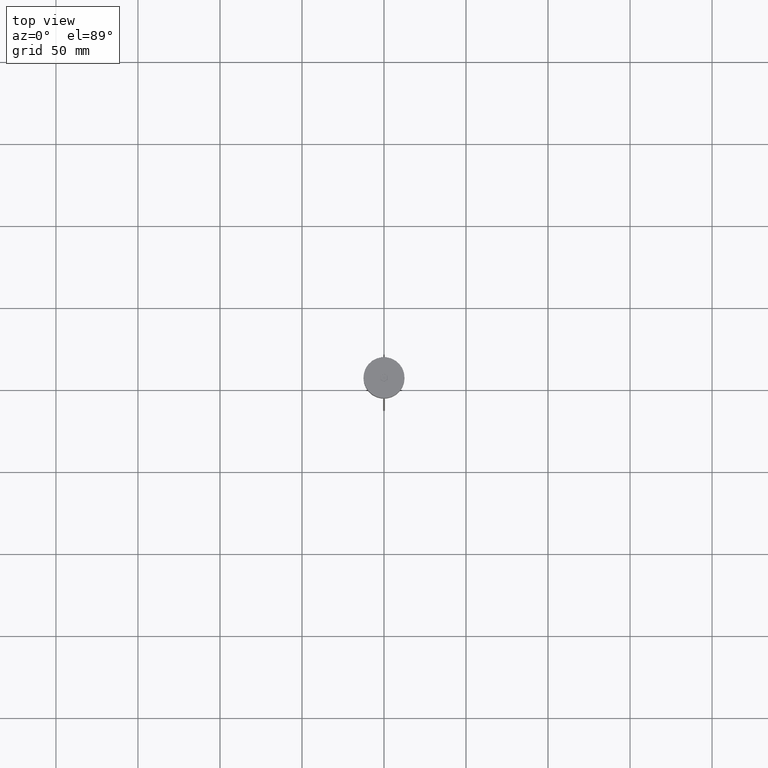
[diagram: clean part render]
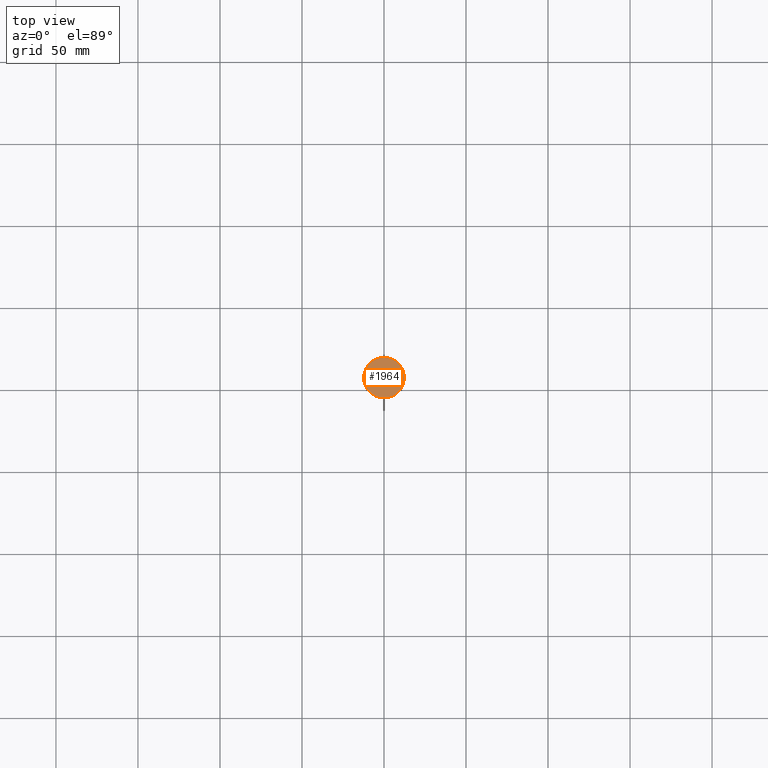
[diagram: same view with one face highlighted and labeled with its STEP entity id]
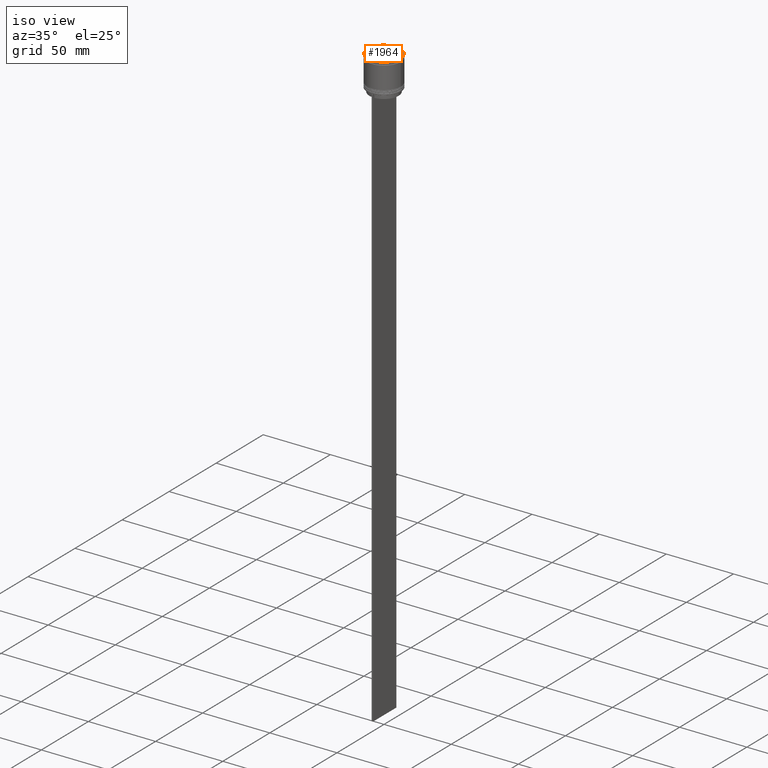
[diagram: same view with one face highlighted and labeled with its STEP entity id]
A machine part, top view. The second image highlights one B-rep face of the part: STEP entity #1964.
A second angle (iso view) of the same face is appended — the face is thin or edge-on in the first view.
In plain terms, the highlighted planar face has unit normal (0, -0, 1).
Its self-contained STEP definition (entity closure, byte-faithful):
#18 = CARTESIAN_POINT ( 'NONE',  ( 0.000000000000000000, 0.000000000000000000, 0.000000000000000000 ) ) ;
#75 = LINE ( 'NONE', #1352, #875 ) ;
#93 = CARTESIAN_POINT ( 'NONE',  ( 2.100000000000007194, -1.212435565298218165, 0.000000000000000000 ) ) ;
#131 = CARTESIAN_POINT ( 'NONE',  ( -0.05000000000000367345, 2.396003617136952535, 0.000000000000000000 ) ) ;
#132 = CARTESIAN_POINT ( 'NONE',  ( 0.05000000000000407591, -2.396003617136953423, 0.000000000000000000 ) ) ;
#173 = CARTESIAN_POINT ( 'NONE',  ( 0.000000000000000000, 0.000000000000000000, 0.000000000000000000 ) ) ;
#179 = LINE ( 'NONE', #823, #433 ) ;
#238 = CARTESIAN_POINT ( 'NONE',  ( -2.100000000000007194, 1.212435565298217943, 0.000000000000000000 ) ) ;
#246 = ORIENTED_EDGE ( 'NONE', *, *, #1995, .T. ) ;
#269 = ORIENTED_EDGE ( 'NONE', *, *, #1872, .T. ) ;
#291 = PLANE ( 'NONE',  #1857 ) ;
#312 = FACE_BOUND ( 'NONE', #1481, .T. ) ;
#362 = EDGE_CURVE ( 'NONE', #794, #1875, #179, .T. ) ;
#423 = EDGE_LOOP ( 'NONE', ( #269, #791 ) ) ;
#431 = ORIENTED_EDGE ( 'NONE', *, *, #362, .T. ) ;
#433 = VECTOR ( 'NONE', #623, 1000.000000000000000 ) ;
#460 = ORIENTED_EDGE ( 'NONE', *, *, #793, .T. ) ;
#470 = CARTESIAN_POINT ( 'NONE',  ( -2.100000000000007194, 1.154700538379251018, 0.000000000000000000 ) ) ;
#492 = DIRECTION ( 'NONE',  ( 0.000000000000000000, -0.000000000000000000, 1.000000000000000000 ) ) ;
#499 = EDGE_CURVE ( 'NONE', #631, #794, #75, .T. ) ;
#552 = VECTOR ( 'NONE', #821, 999.9999999999998863 ) ;
#591 = DIRECTION ( 'NONE',  ( 1.000000000000000000, 0.000000000000000000, 0.000000000000000000 ) ) ;
#622 = VERTEX_POINT ( 'NONE', #914 ) ;
#623 = DIRECTION ( 'NONE',  ( 0.000000000000000000, -1.000000000000000000, 0.000000000000000000 ) ) ;
#631 = VERTEX_POINT ( 'NONE', #1230 ) ;
#668 = ORIENTED_EDGE ( 'NONE', *, *, #499, .T. ) ;
#773 = EDGE_CURVE ( 'NONE', #622, #928, #1889, .T. ) ;
#791 = ORIENTED_EDGE ( 'NONE', *, *, #1348, .T. ) ;
#793 = EDGE_CURVE ( 'NONE', #928, #631, #1578, .T. ) ;
#794 = VERTEX_POINT ( 'NONE', #2082 ) ;
#802 = VERTEX_POINT ( 'NONE', #1497 ) ;
#821 = DIRECTION ( 'NONE',  ( -0.8660254037844385966, -0.5000000000000002220, 0.000000000000000000 ) ) ;
#823 = CARTESIAN_POINT ( 'NONE',  ( 2.100000000000007194, -1.154700538379251684, 0.000000000000000000 ) ) ;
#868 = CARTESIAN_POINT ( 'NONE',  ( 12.39999999999999858, 0.000000000000000000, 0.000000000000000000 ) ) ;
#875 = VECTOR ( 'NONE', #1789, 1000.000000000000000 ) ;
#895 = DIRECTION ( 'NONE',  ( -0.000000000000000000, -0.000000000000000000, 1.000000000000000000 ) ) ;
#914 = CARTESIAN_POINT ( 'NONE',  ( -2.100000000000007194, -1.212435565298218831, 0.000000000000000000 ) ) ;
#928 = VERTEX_POINT ( 'NONE', #238 ) ;
#965 = VERTEX_POINT ( 'NONE', #868 ) ;
#997 = LINE ( 'NONE', #1803, #1278 ) ;
#1156 = VERTEX_POINT ( 'NONE', #1412 ) ;
#1206 = ORIENTED_EDGE ( 'NONE', *, *, #773, .T. ) ;
#1230 = CARTESIAN_POINT ( 'NONE',  ( 7.253222183746967031E-17, 2.424871130596435886, 0.000000000000000000 ) ) ;
#1252 = EDGE_CURVE ( 'NONE', #1156, #622, #997, .T. ) ;
#1278 = VECTOR ( 'NONE', #1811, 1000.000000000000114 ) ;
#1348 = EDGE_CURVE ( 'NONE', #802, #965, #1851, .T. ) ;
#1352 = CARTESIAN_POINT ( 'NONE',  ( 2.050000000000003819, 1.241303078757701295, 0.000000000000000000 ) ) ;
#1412 = CARTESIAN_POINT ( 'NONE',  ( 6.025829263321777976E-16, -2.424871130596436775, 0.000000000000000000 ) ) ;
#1413 = AXIS2_PLACEMENT_3D ( 'NONE', #173, #1952, #1473 ) ;
#1425 = LINE ( 'NONE', #132, #552 ) ;
#1433 = DIRECTION ( 'NONE',  ( 0.8660254037844387076, 0.4999999999999998890, 0.000000000000000000 ) ) ;
#1473 = DIRECTION ( 'NONE',  ( 1.000000000000000000, 0.000000000000000000, 0.000000000000000000 ) ) ;
#1481 = EDGE_LOOP ( 'NONE', ( #246, #1975, #1206, #460, #668, #431 ) ) ;
#1497 = CARTESIAN_POINT ( 'NONE',  ( -12.39999999999999858, 1.524685264938454448E-15, 0.000000000000000000 ) ) ;
#1578 = LINE ( 'NONE', #131, #1880 ) ;
#1622 = DIRECTION ( 'NONE',  ( 0.000000000000000000, 1.000000000000000000, 0.000000000000000000 ) ) ;
#1624 = DIRECTION ( 'NONE',  ( 1.000000000000000000, 0.000000000000000000, 0.000000000000000000 ) ) ;
#1696 = CIRCLE ( 'NONE', #1926, 12.39999999999999858 ) ;
#1731 = CARTESIAN_POINT ( 'NONE',  ( 0.000000000000000000, 0.000000000000000000, 0.000000000000000000 ) ) ;
#1747 = FACE_OUTER_BOUND ( 'NONE', #423, .T. ) ;
#1789 = DIRECTION ( 'NONE',  ( 0.8660254037844387076, -0.4999999999999998890, 0.000000000000000000 ) ) ;
#1803 = CARTESIAN_POINT ( 'NONE',  ( -2.050000000000003819, -1.241303078757702183, 0.000000000000000000 ) ) ;
#1811 = DIRECTION ( 'NONE',  ( -0.8660254037844388186, 0.4999999999999997780, 0.000000000000000000 ) ) ;
#1847 = VECTOR ( 'NONE', #1622, 1000.000000000000000 ) ;
#1851 = CIRCLE ( 'NONE', #1413, 12.39999999999999858 ) ;
#1857 = AXIS2_PLACEMENT_3D ( 'NONE', #18, #492, #1624 ) ;
#1872 = EDGE_CURVE ( 'NONE', #965, #802, #1696, .T. ) ;
#1875 = VERTEX_POINT ( 'NONE', #93 ) ;
#1880 = VECTOR ( 'NONE', #1433, 1000.000000000000000 ) ;
#1889 = LINE ( 'NONE', #470, #1847 ) ;
#1926 = AXIS2_PLACEMENT_3D ( 'NONE', #1731, #895, #591 ) ;
#1952 = DIRECTION ( 'NONE',  ( -0.000000000000000000, -0.000000000000000000, 1.000000000000000000 ) ) ;
#1964 = ADVANCED_FACE ( 'NONE', ( #1747, #312 ), #291, .T. ) ;
#1975 = ORIENTED_EDGE ( 'NONE', *, *, #1252, .T. ) ;
#1995 = EDGE_CURVE ( 'NONE', #1875, #1156, #1425, .T. ) ;
#2082 = CARTESIAN_POINT ( 'NONE',  ( 2.100000000000007194, 1.212435565298217943, 0.000000000000000000 ) ) ;